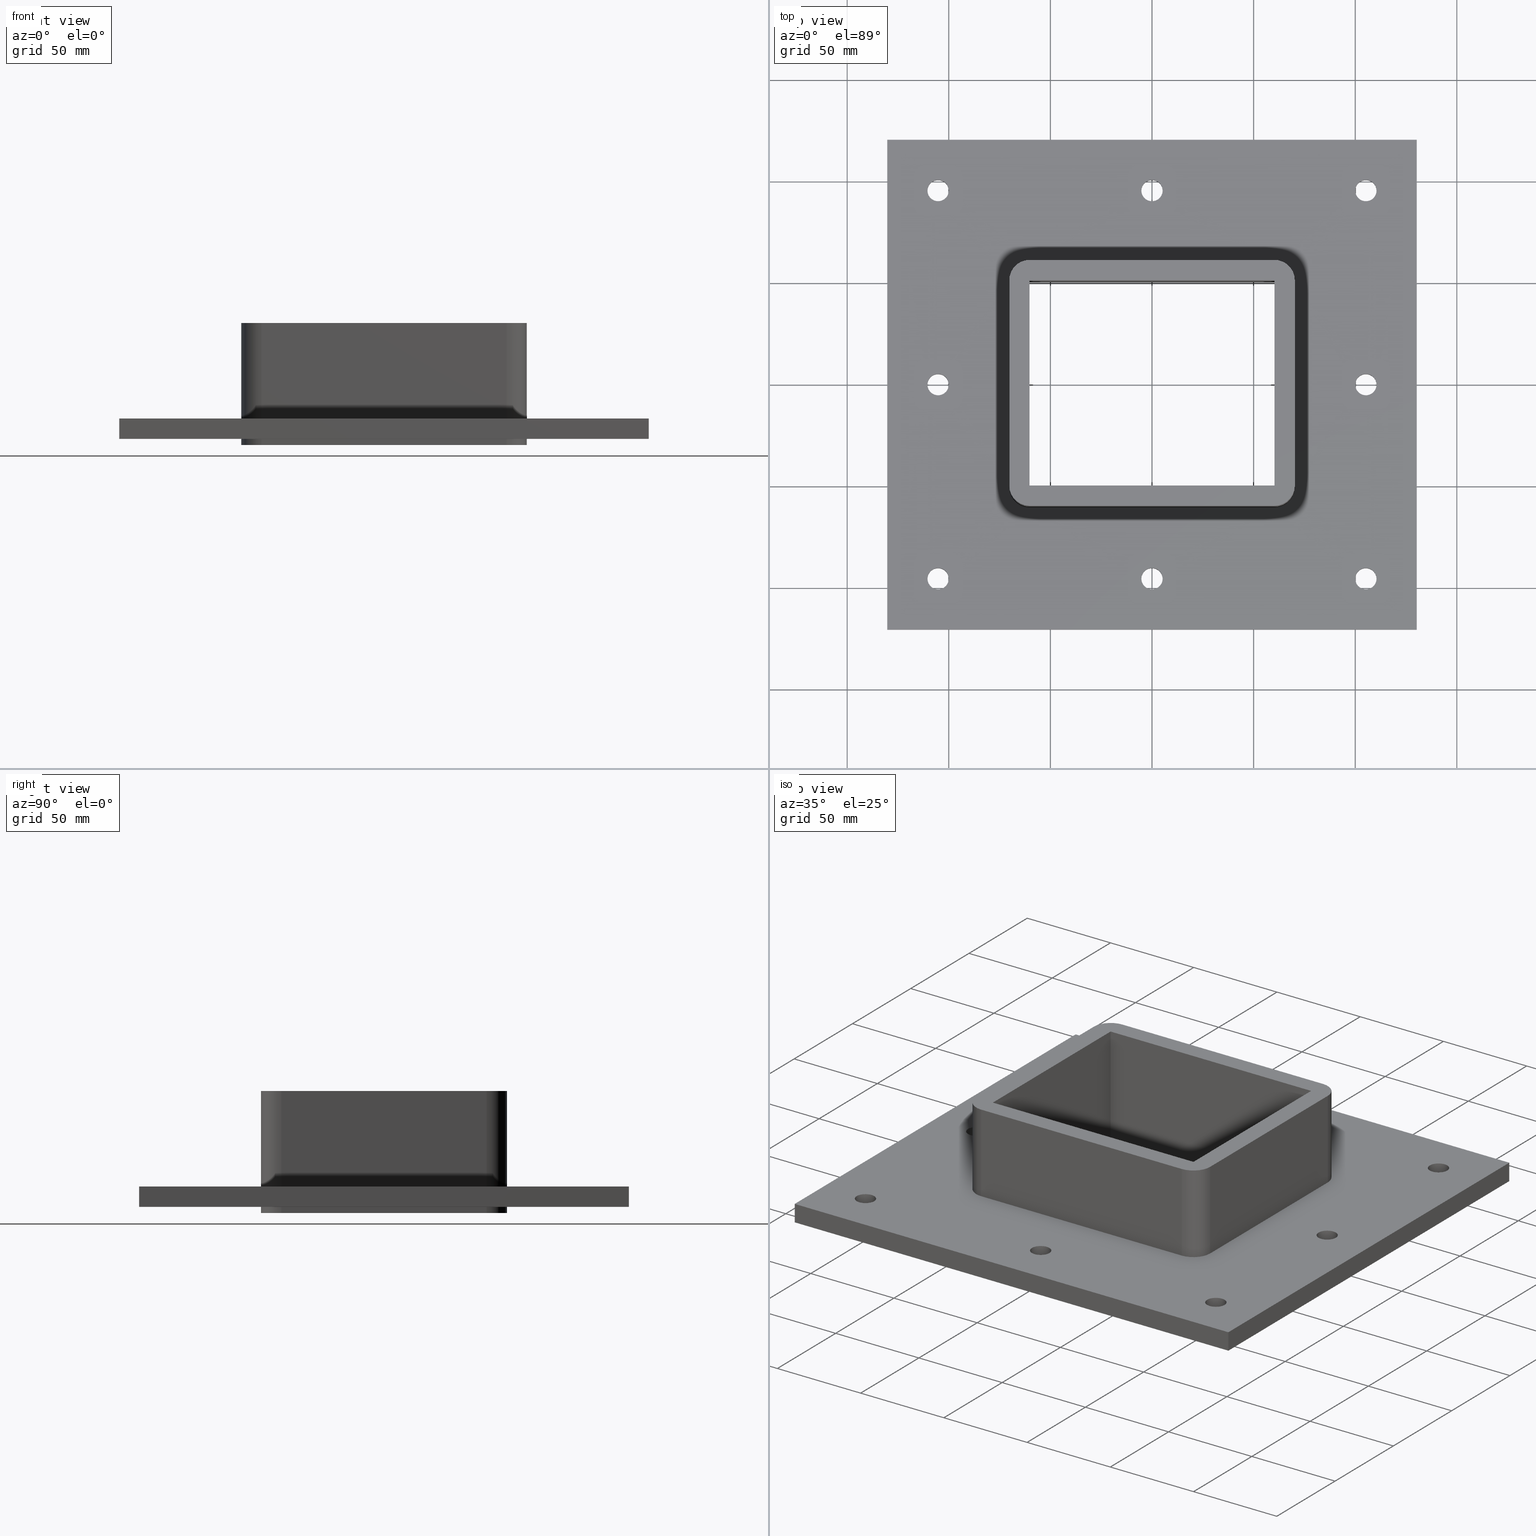
[diagram: canonical four-view strip — front | top / right | iso, engineering-drawing reading convention]
A machine part, canonical four-view strip (front | top / right | iso — engineering-drawing reading convention). The complete STEP part file that produces these views, byte-faithful:
ISO-10303-21;
HEADER;
/****************************************************************
 * Generated by software with PDElib inside                    *
 * PDElib Version v51a, created Wed 11/30/2011                  *
 * ITI Transcendata (http://www.transcendata.com/)              *
 ****************************************************************/
FILE_DESCRIPTION((''),'2;1');
FILE_NAME('C:\\Users\\se-milkar\\Desktop\\SFHM GENERATOR\\File dump\\SFHM2X1.stp','2017-01-17T17:21:05',(''),(''),'Autodesk Inventor 2013','Autodesk Inventor 2013','');
FILE_SCHEMA(('AUTOMOTIVE_DESIGN { 1 0 10303 214 1 1 1 1 }'));
ENDSEC;
DATA;
#5=APPLICATION_CONTEXT('automotive design');
#6=APPLICATION_PROTOCOL_DEFINITION('International Standard','automotive_design',2001,#5);
#7=PRODUCT_CONTEXT('',#5,'mechanical');
#8=PRODUCT('RTD-FRAME GENERATOR SF-LABB','RTD-FRAME GENERATOR SF-LABB',$,(#7));
#9=PRODUCT_RELATED_PRODUCT_CATEGORY('part',$,(#8));
#10=PRODUCT_DEFINITION_FORMATION('',$,#8);
#11=PRODUCT_DEFINITION_CONTEXT('part definition',#5,'design');
#12=PRODUCT_DEFINITION('',$,#10,#11);
#18=(NAMED_UNIT(*)PLANE_ANGLE_UNIT()SI_UNIT($,.RADIAN.));
#19=DIMENSIONAL_EXPONENTS(0.0,0.0,0.0,0.0,0.0,0.0,0.0);
#20=PLANE_ANGLE_MEASURE_WITH_UNIT(PLANE_ANGLE_MEASURE(0.0174532925),#18);
#24=(CONVERSION_BASED_UNIT('DEGREE',#20)NAMED_UNIT(#19)PLANE_ANGLE_UNIT());
#28=(NAMED_UNIT(*)SI_UNIT($,.STERADIAN.)SOLID_ANGLE_UNIT());
#32=(LENGTH_UNIT()NAMED_UNIT(*)SI_UNIT(.MILLI.,.METRE.));
#34=UNCERTAINTY_MEASURE_WITH_UNIT(LENGTH_MEASURE(0.01),#32,'DISTANCE_ACCURACY_VALUE','');
#36=(GEOMETRIC_REPRESENTATION_CONTEXT(3)GLOBAL_UNCERTAINTY_ASSIGNED_CONTEXT((#34))GLOBAL_UNIT_ASSIGNED_CONTEXT((#24,#28,#32))REPRESENTATION_CONTEXT('None','None'));
#37=AXIS2_PLACEMENT_3D('',#38,#39,#40);
#38=CARTESIAN_POINT('',(0.0,0.0,0.0));
#39=DIRECTION('',(0.0,0.0,1.0));
#40=DIRECTION('',(1.0,0.0,0.0));
#41=SHAPE_REPRESENTATION('',(#37),#36);
#42=PRODUCT_DEFINITION_SHAPE('','',#12);
#43=SHAPE_DEFINITION_REPRESENTATION(#42,#41);
#49=(NAMED_UNIT(*)PLANE_ANGLE_UNIT()SI_UNIT($,.RADIAN.));
#50=DIMENSIONAL_EXPONENTS(0.0,0.0,0.0,0.0,0.0,0.0,0.0);
#51=PLANE_ANGLE_MEASURE_WITH_UNIT(PLANE_ANGLE_MEASURE(0.0174532925),#49);
#55=(CONVERSION_BASED_UNIT('DEGREE',#51)NAMED_UNIT(#50)PLANE_ANGLE_UNIT());
#59=(NAMED_UNIT(*)SI_UNIT($,.STERADIAN.)SOLID_ANGLE_UNIT());
#63=(LENGTH_UNIT()NAMED_UNIT(*)SI_UNIT(.MILLI.,.METRE.));
#65=UNCERTAINTY_MEASURE_WITH_UNIT(LENGTH_MEASURE(0.000001),#63,'DISTANCE_ACCURACY_VALUE','');
#67=(GEOMETRIC_REPRESENTATION_CONTEXT(3)GLOBAL_UNCERTAINTY_ASSIGNED_CONTEXT((#65))GLOBAL_UNIT_ASSIGNED_CONTEXT((#55,#59,#63))REPRESENTATION_CONTEXT('','3D'));
#68=CARTESIAN_POINT('',(1.776357E-014,-95.500000000000028,-376.9183935283109));
#69=DIRECTION('',(0.0,0.0,1.0));
#70=DIRECTION('',(1.0,0.0,0.0));
#71=AXIS2_PLACEMENT_3D('',#68,#69,#70);
#72=CYLINDRICAL_SURFACE('',#71,5.25);
#73=CARTESIAN_POINT('',(-5.249999999999986,-95.500000000000028,-27.000000000000028));
#74=VERTEX_POINT('',#73);
#75=CARTESIAN_POINT('',(1.776357E-014,-95.500000000000028,-27.000000000000028));
#76=DIRECTION('',(0.0,0.0,1.0));
#77=DIRECTION('',(1.0,0.0,0.0));
#78=AXIS2_PLACEMENT_3D('',#75,#76,#77);
#79=CIRCLE('',#78,5.25);
#80=EDGE_CURVE('',#74,#74,#79,.T.);
#81=ORIENTED_EDGE('',*,*,#80,.F.);
#82=EDGE_LOOP('',(#81));
#83=FACE_OUTER_BOUND('',#82,.T.);
#84=CARTESIAN_POINT('',(5.250000000000021,-95.500000000000028,-17.0));
#85=VERTEX_POINT('',#84);
#86=CARTESIAN_POINT('',(1.776357E-014,-95.500000000000028,-17.000000000000028));
#87=DIRECTION('',(0.0,0.0,-1.0));
#88=DIRECTION('',(1.0,0.0,0.0));
#89=AXIS2_PLACEMENT_3D('',#86,#87,#88);
#90=CIRCLE('',#89,5.25);
#91=EDGE_CURVE('',#85,#85,#90,.T.);
#92=ORIENTED_EDGE('',*,*,#91,.F.);
#93=EDGE_LOOP('',(#92));
#94=FACE_BOUND('',#93,.T.);
#95=ADVANCED_FACE('',(#83,#94),#72,.F.);
#96=CARTESIAN_POINT('',(-1.776357E-014,95.499999999999986,-376.9183935283109));
#97=DIRECTION('',(0.0,0.0,1.0));
#98=DIRECTION('',(1.0,0.0,0.0));
#99=AXIS2_PLACEMENT_3D('',#96,#97,#98);
#100=CYLINDRICAL_SURFACE('',#99,5.25);
#101=CARTESIAN_POINT('',(-5.250000000000021,95.499999999999986,-27.000000000000028));
#102=VERTEX_POINT('',#101);
#103=CARTESIAN_POINT('',(-1.776357E-014,95.499999999999986,-27.000000000000028));
#104=DIRECTION('',(0.0,0.0,1.0));
#105=DIRECTION('',(1.0,0.0,0.0));
#106=AXIS2_PLACEMENT_3D('',#103,#104,#105);
#107=CIRCLE('',#106,5.25);
#108=EDGE_CURVE('',#102,#102,#107,.T.);
#109=ORIENTED_EDGE('',*,*,#108,.F.);
#110=EDGE_LOOP('',(#109));
#111=FACE_OUTER_BOUND('',#110,.T.);
#112=CARTESIAN_POINT('',(5.249999999999986,95.499999999999986,-17.0));
#113=VERTEX_POINT('',#112);
#114=CARTESIAN_POINT('',(-1.776357E-014,95.499999999999986,-17.000000000000028));
#115=DIRECTION('',(0.0,0.0,-1.0));
#116=DIRECTION('',(1.0,0.0,0.0));
#117=AXIS2_PLACEMENT_3D('',#114,#115,#116);
#118=CIRCLE('',#117,5.25);
#119=EDGE_CURVE('',#113,#113,#118,.T.);
#120=ORIENTED_EDGE('',*,*,#119,.F.);
#121=EDGE_LOOP('',(#120));
#122=FACE_BOUND('',#121,.T.);
#123=ADVANCED_FACE('',(#111,#122),#100,.F.);
#124=CARTESIAN_POINT('',(105.25,0.0,-376.9183935283109));
#125=DIRECTION('',(0.0,0.0,1.0));
#126=DIRECTION('',(1.0,0.0,0.0));
#127=AXIS2_PLACEMENT_3D('',#124,#125,#126);
#128=CYLINDRICAL_SURFACE('',#127,5.25);
#129=CARTESIAN_POINT('',(100.0,0.0,-27.000000000000028));
#130=VERTEX_POINT('',#129);
#131=CARTESIAN_POINT('',(105.25,0.0,-27.000000000000028));
#132=DIRECTION('',(0.0,0.0,1.0));
#133=DIRECTION('',(1.0,0.0,0.0));
#134=AXIS2_PLACEMENT_3D('',#131,#132,#133);
#135=CIRCLE('',#134,5.25);
#136=EDGE_CURVE('',#130,#130,#135,.T.);
#137=ORIENTED_EDGE('',*,*,#136,.F.);
#138=EDGE_LOOP('',(#137));
#139=FACE_OUTER_BOUND('',#138,.T.);
#140=CARTESIAN_POINT('',(110.5,0.0,-17.0));
#141=VERTEX_POINT('',#140);
#142=CARTESIAN_POINT('',(105.25,0.0,-17.000000000000028));
#143=DIRECTION('',(0.0,0.0,-1.0));
#144=DIRECTION('',(1.0,0.0,0.0));
#145=AXIS2_PLACEMENT_3D('',#142,#143,#144);
#146=CIRCLE('',#145,5.25);
#147=EDGE_CURVE('',#141,#141,#146,.T.);
#148=ORIENTED_EDGE('',*,*,#147,.F.);
#149=EDGE_LOOP('',(#148));
#150=FACE_BOUND('',#149,.T.);
#151=ADVANCED_FACE('',(#139,#150),#128,.F.);
#152=CARTESIAN_POINT('',(-105.25,-3.552714E-014,-376.9183935283109));
#153=DIRECTION('',(0.0,0.0,1.0));
#154=DIRECTION('',(1.0,0.0,0.0));
#155=AXIS2_PLACEMENT_3D('',#152,#153,#154);
#156=CYLINDRICAL_SURFACE('',#155,5.25);
#157=CARTESIAN_POINT('',(-110.5,-3.552714E-014,-27.000000000000028));
#158=VERTEX_POINT('',#157);
#159=CARTESIAN_POINT('',(-105.25,-3.552714E-014,-27.000000000000028));
#160=DIRECTION('',(0.0,0.0,1.0));
#161=DIRECTION('',(1.0,0.0,0.0));
#162=AXIS2_PLACEMENT_3D('',#159,#160,#161);
#163=CIRCLE('',#162,5.25);
#164=EDGE_CURVE('',#158,#158,#163,.T.);
#165=ORIENTED_EDGE('',*,*,#164,.F.);
#166=EDGE_LOOP('',(#165));
#167=FACE_OUTER_BOUND('',#166,.T.);
#168=CARTESIAN_POINT('',(-100.0,-3.552714E-014,-17.0));
#169=VERTEX_POINT('',#168);
#170=CARTESIAN_POINT('',(-105.25,-3.552714E-014,-17.000000000000028));
#171=DIRECTION('',(0.0,0.0,-1.0));
#172=DIRECTION('',(1.0,0.0,0.0));
#173=AXIS2_PLACEMENT_3D('',#170,#171,#172);
#174=CIRCLE('',#173,5.25);
#175=EDGE_CURVE('',#169,#169,#174,.T.);
#176=ORIENTED_EDGE('',*,*,#175,.F.);
#177=EDGE_LOOP('',(#176));
#178=FACE_BOUND('',#177,.T.);
#179=ADVANCED_FACE('',(#167,#178),#156,.F.);
#180=CARTESIAN_POINT('',(-105.25000000000003,95.499999999999972,-376.9183935283109));
#181=DIRECTION('',(0.0,0.0,1.0));
#182=DIRECTION('',(1.0,0.0,0.0));
#183=AXIS2_PLACEMENT_3D('',#180,#181,#182);
#184=CYLINDRICAL_SURFACE('',#183,5.25);
#185=CARTESIAN_POINT('',(-110.50000000000003,95.499999999999972,-27.000000000000028));
#186=VERTEX_POINT('',#185);
#187=CARTESIAN_POINT('',(-105.25000000000003,95.499999999999972,-27.000000000000028));
#188=DIRECTION('',(0.0,0.0,1.0));
#189=DIRECTION('',(1.0,0.0,0.0));
#190=AXIS2_PLACEMENT_3D('',#187,#188,#189);
#191=CIRCLE('',#190,5.25);
#192=EDGE_CURVE('',#186,#186,#191,.T.);
#193=ORIENTED_EDGE('',*,*,#192,.F.);
#194=EDGE_LOOP('',(#193));
#195=FACE_OUTER_BOUND('',#194,.T.);
#196=CARTESIAN_POINT('',(-100.00000000000001,95.499999999999972,-17.0));
#197=VERTEX_POINT('',#196);
#198=CARTESIAN_POINT('',(-105.25000000000003,95.499999999999972,-17.000000000000028));
#199=DIRECTION('',(0.0,0.0,-1.0));
#200=DIRECTION('',(1.0,0.0,0.0));
#201=AXIS2_PLACEMENT_3D('',#198,#199,#200);
#202=CIRCLE('',#201,5.25);
#203=EDGE_CURVE('',#197,#197,#202,.T.);
#204=ORIENTED_EDGE('',*,*,#203,.F.);
#205=EDGE_LOOP('',(#204));
#206=FACE_BOUND('',#205,.T.);
#207=ADVANCED_FACE('',(#195,#206),#184,.F.);
#208=CARTESIAN_POINT('',(105.24999999999999,95.5,-376.9183935283109));
#209=DIRECTION('',(0.0,0.0,1.0));
#210=DIRECTION('',(1.0,0.0,0.0));
#211=AXIS2_PLACEMENT_3D('',#208,#209,#210);
#212=CYLINDRICAL_SURFACE('',#211,5.25);
#213=CARTESIAN_POINT('',(99.999999999999986,95.5,-27.000000000000028));
#214=VERTEX_POINT('',#213);
#215=CARTESIAN_POINT('',(105.24999999999999,95.5,-27.000000000000028));
#216=DIRECTION('',(0.0,0.0,1.0));
#217=DIRECTION('',(1.0,0.0,0.0));
#218=AXIS2_PLACEMENT_3D('',#215,#216,#217);
#219=CIRCLE('',#218,5.25);
#220=EDGE_CURVE('',#214,#214,#219,.T.);
#221=ORIENTED_EDGE('',*,*,#220,.F.);
#222=EDGE_LOOP('',(#221));
#223=FACE_OUTER_BOUND('',#222,.T.);
#224=CARTESIAN_POINT('',(110.49999999999999,95.5,-17.0));
#225=VERTEX_POINT('',#224);
#226=CARTESIAN_POINT('',(105.24999999999999,95.5,-17.000000000000028));
#227=DIRECTION('',(0.0,0.0,-1.0));
#228=DIRECTION('',(1.0,0.0,0.0));
#229=AXIS2_PLACEMENT_3D('',#226,#227,#228);
#230=CIRCLE('',#229,5.25);
#231=EDGE_CURVE('',#225,#225,#230,.T.);
#232=ORIENTED_EDGE('',*,*,#231,.F.);
#233=EDGE_LOOP('',(#232));
#234=FACE_BOUND('',#233,.T.);
#235=ADVANCED_FACE('',(#223,#234),#212,.F.);
#236=CARTESIAN_POINT('',(105.25000000000003,-95.5,-376.9183935283109));
#237=DIRECTION('',(0.0,0.0,1.0));
#238=DIRECTION('',(1.0,0.0,0.0));
#239=AXIS2_PLACEMENT_3D('',#236,#237,#238);
#240=CYLINDRICAL_SURFACE('',#239,5.25);
#241=CARTESIAN_POINT('',(100.00000000000001,-95.5,-27.000000000000028));
#242=VERTEX_POINT('',#241);
#243=CARTESIAN_POINT('',(105.25000000000003,-95.5,-27.000000000000028));
#244=DIRECTION('',(0.0,0.0,1.0));
#245=DIRECTION('',(1.0,0.0,0.0));
#246=AXIS2_PLACEMENT_3D('',#243,#244,#245);
#247=CIRCLE('',#246,5.25);
#248=EDGE_CURVE('',#242,#242,#247,.T.);
#249=ORIENTED_EDGE('',*,*,#248,.F.);
#250=EDGE_LOOP('',(#249));
#251=FACE_OUTER_BOUND('',#250,.T.);
#252=CARTESIAN_POINT('',(110.50000000000003,-95.5,-17.0));
#253=VERTEX_POINT('',#252);
#254=CARTESIAN_POINT('',(105.25000000000003,-95.5,-17.000000000000028));
#255=DIRECTION('',(0.0,0.0,-1.0));
#256=DIRECTION('',(1.0,0.0,0.0));
#257=AXIS2_PLACEMENT_3D('',#254,#255,#256);
#258=CIRCLE('',#257,5.25);
#259=EDGE_CURVE('',#253,#253,#258,.T.);
#260=ORIENTED_EDGE('',*,*,#259,.F.);
#261=EDGE_LOOP('',(#260));
#262=FACE_BOUND('',#261,.T.);
#263=ADVANCED_FACE('',(#251,#262),#240,.F.);
#264=CARTESIAN_POINT('',(-105.24999999999999,-95.500000000000043,-376.9183935283109));
#265=DIRECTION('',(0.0,0.0,1.0));
#266=DIRECTION('',(1.0,0.0,0.0));
#267=AXIS2_PLACEMENT_3D('',#264,#265,#266);
#268=CYLINDRICAL_SURFACE('',#267,5.25);
#269=CARTESIAN_POINT('',(-110.49999999999999,-95.500000000000043,-27.000000000000028));
#270=VERTEX_POINT('',#269);
#271=CARTESIAN_POINT('',(-105.24999999999999,-95.500000000000043,-27.000000000000028));
#272=DIRECTION('',(0.0,0.0,1.0));
#273=DIRECTION('',(1.0,0.0,0.0));
#274=AXIS2_PLACEMENT_3D('',#271,#272,#273);
#275=CIRCLE('',#274,5.25);
#276=EDGE_CURVE('',#270,#270,#275,.T.);
#277=ORIENTED_EDGE('',*,*,#276,.F.);
#278=EDGE_LOOP('',(#277));
#279=FACE_OUTER_BOUND('',#278,.T.);
#280=CARTESIAN_POINT('',(-99.999999999999986,-95.500000000000043,-17.0));
#281=VERTEX_POINT('',#280);
#282=CARTESIAN_POINT('',(-105.24999999999999,-95.500000000000043,-17.000000000000028));
#283=DIRECTION('',(0.0,0.0,-1.0));
#284=DIRECTION('',(1.0,0.0,0.0));
#285=AXIS2_PLACEMENT_3D('',#282,#283,#284);
#286=CIRCLE('',#285,5.25);
#287=EDGE_CURVE('',#281,#281,#286,.T.);
#288=ORIENTED_EDGE('',*,*,#287,.F.);
#289=EDGE_LOOP('',(#288));
#290=FACE_BOUND('',#289,.T.);
#291=ADVANCED_FACE('',(#279,#290),#268,.F.);
#292=CARTESIAN_POINT('',(-130.25000000000003,120.49999999999997,-27.0));
#293=DIRECTION('',(-1.0,0.0,0.0));
#294=DIRECTION('',(0.0,-1.0,0.0));
#295=AXIS2_PLACEMENT_3D('',#292,#293,#294);
#296=PLANE('',#295);
#297=CARTESIAN_POINT('',(-130.25,-120.50000000000004,-27.0));
#298=VERTEX_POINT('',#297);
#299=CARTESIAN_POINT('',(-130.25000000000003,120.49999999999997,-27.0));
#300=VERTEX_POINT('',#299);
#301=CARTESIAN_POINT('',(-130.25,-120.50000000000004,-27.0));
#302=DIRECTION('',(0.0,1.0,0.0));
#303=VECTOR('',#302,241.0);
#304=LINE('',#301,#303);
#305=EDGE_CURVE('',#298,#300,#304,.T.);
#306=ORIENTED_EDGE('',*,*,#305,.F.);
#307=CARTESIAN_POINT('',(-130.25,-120.50000000000004,-17.0));
#308=VERTEX_POINT('',#307);
#309=CARTESIAN_POINT('',(-130.25,-120.50000000000004,-27.0));
#310=DIRECTION('',(0.0,0.0,1.0));
#311=VECTOR('',#310,10.0);
#312=LINE('',#309,#311);
#313=EDGE_CURVE('',#298,#308,#312,.T.);
#314=ORIENTED_EDGE('',*,*,#313,.T.);
#315=CARTESIAN_POINT('',(-130.25000000000003,120.49999999999997,-17.0));
#316=VERTEX_POINT('',#315);
#317=CARTESIAN_POINT('',(-130.25000000000003,120.49999999999996,-17.0));
#318=DIRECTION('',(0.0,-1.0,0.0));
#319=VECTOR('',#318,241.0);
#320=LINE('',#317,#319);
#321=EDGE_CURVE('',#316,#308,#320,.T.);
#322=ORIENTED_EDGE('',*,*,#321,.F.);
#323=CARTESIAN_POINT('',(-130.25000000000003,120.49999999999997,-27.0));
#324=DIRECTION('',(0.0,0.0,1.0));
#325=VECTOR('',#324,10.0);
#326=LINE('',#323,#325);
#327=EDGE_CURVE('',#300,#316,#326,.T.);
#328=ORIENTED_EDGE('',*,*,#327,.F.);
#329=EDGE_LOOP('',(#306,#314,#322,#328));
#330=FACE_OUTER_BOUND('',#329,.T.);
#331=ADVANCED_FACE('',(#330),#296,.T.);
#332=CARTESIAN_POINT('',(130.25,120.5,-27.0));
#333=DIRECTION('',(0.0,1.0,0.0));
#334=DIRECTION('',(-1.0,0.0,0.0));
#335=AXIS2_PLACEMENT_3D('',#332,#333,#334);
#336=PLANE('',#335);
#337=CARTESIAN_POINT('',(130.25,120.5,-27.0));
#338=VERTEX_POINT('',#337);
#339=CARTESIAN_POINT('',(-130.25000000000003,120.49999999999997,-27.0));
#340=DIRECTION('',(1.0,0.0,0.0));
#341=VECTOR('',#340,260.5);
#342=LINE('',#339,#341);
#343=EDGE_CURVE('',#300,#338,#342,.T.);
#344=ORIENTED_EDGE('',*,*,#343,.F.);
#345=ORIENTED_EDGE('',*,*,#327,.T.);
#346=CARTESIAN_POINT('',(130.25,120.5,-17.0));
#347=VERTEX_POINT('',#346);
#348=CARTESIAN_POINT('',(130.24999999999997,120.5,-17.0));
#349=DIRECTION('',(-1.0,0.0,0.0));
#350=VECTOR('',#349,260.5);
#351=LINE('',#348,#350);
#352=EDGE_CURVE('',#347,#316,#351,.T.);
#353=ORIENTED_EDGE('',*,*,#352,.F.);
#354=CARTESIAN_POINT('',(130.25,120.5,-27.0));
#355=DIRECTION('',(0.0,0.0,1.0));
#356=VECTOR('',#355,10.0);
#357=LINE('',#354,#356);
#358=EDGE_CURVE('',#338,#347,#357,.T.);
#359=ORIENTED_EDGE('',*,*,#358,.F.);
#360=EDGE_LOOP('',(#344,#345,#353,#359));
#361=FACE_OUTER_BOUND('',#360,.T.);
#362=ADVANCED_FACE('',(#361),#336,.T.);
#363=CARTESIAN_POINT('',(130.25000000000003,-120.5,-27.0));
#364=DIRECTION('',(1.0,0.0,0.0));
#365=DIRECTION('',(0.0,1.0,0.0));
#366=AXIS2_PLACEMENT_3D('',#363,#364,#365);
#367=PLANE('',#366);
#368=CARTESIAN_POINT('',(130.25000000000003,-120.5,-27.0));
#369=VERTEX_POINT('',#368);
#370=CARTESIAN_POINT('',(130.25,120.5,-27.0));
#371=DIRECTION('',(0.0,-1.0,0.0));
#372=VECTOR('',#371,241.0);
#373=LINE('',#370,#372);
#374=EDGE_CURVE('',#338,#369,#373,.T.);
#375=ORIENTED_EDGE('',*,*,#374,.F.);
#376=ORIENTED_EDGE('',*,*,#358,.T.);
#377=CARTESIAN_POINT('',(130.25000000000003,-120.5,-17.0));
#378=VERTEX_POINT('',#377);
#379=CARTESIAN_POINT('',(130.25000000000003,-120.5,-17.0));
#380=DIRECTION('',(0.0,1.0,0.0));
#381=VECTOR('',#380,241.0);
#382=LINE('',#379,#381);
#383=EDGE_CURVE('',#378,#347,#382,.T.);
#384=ORIENTED_EDGE('',*,*,#383,.F.);
#385=CARTESIAN_POINT('',(130.25000000000003,-120.5,-27.0));
#386=DIRECTION('',(0.0,0.0,1.0));
#387=VECTOR('',#386,10.0);
#388=LINE('',#385,#387);
#389=EDGE_CURVE('',#369,#378,#388,.T.);
#390=ORIENTED_EDGE('',*,*,#389,.F.);
#391=EDGE_LOOP('',(#375,#376,#384,#390));
#392=FACE_OUTER_BOUND('',#391,.T.);
#393=ADVANCED_FACE('',(#392),#367,.T.);
#394=CARTESIAN_POINT('',(-130.25,-120.50000000000004,-27.0));
#395=DIRECTION('',(0.0,-1.0,0.0));
#396=DIRECTION('',(1.0,0.0,0.0));
#397=AXIS2_PLACEMENT_3D('',#394,#395,#396);
#398=PLANE('',#397);
#399=CARTESIAN_POINT('',(130.25000000000003,-120.5,-27.0));
#400=DIRECTION('',(-1.0,0.0,0.0));
#401=VECTOR('',#400,260.5);
#402=LINE('',#399,#401);
#403=EDGE_CURVE('',#369,#298,#402,.T.);
#404=ORIENTED_EDGE('',*,*,#403,.F.);
#405=ORIENTED_EDGE('',*,*,#389,.T.);
#406=CARTESIAN_POINT('',(-130.24999999999997,-120.50000000000003,-17.0));
#407=DIRECTION('',(1.0,0.0,0.0));
#408=VECTOR('',#407,260.5);
#409=LINE('',#406,#408);
#410=EDGE_CURVE('',#308,#378,#409,.T.);
#411=ORIENTED_EDGE('',*,*,#410,.F.);
#412=ORIENTED_EDGE('',*,*,#313,.F.);
#413=EDGE_LOOP('',(#404,#405,#411,#412));
#414=FACE_OUTER_BOUND('',#413,.T.);
#415=ADVANCED_FACE('',(#414),#398,.T.);
#416=CARTESIAN_POINT('',(0.0,-2.125252E-014,-17.0));
#417=DIRECTION('',(0.0,0.0,1.0));
#418=DIRECTION('',(1.0,0.0,0.0));
#419=AXIS2_PLACEMENT_3D('',#416,#417,#418);
#420=PLANE('',#419);
#421=ORIENTED_EDGE('',*,*,#410,.T.);
#422=ORIENTED_EDGE('',*,*,#383,.T.);
#423=ORIENTED_EDGE('',*,*,#352,.T.);
#424=ORIENTED_EDGE('',*,*,#321,.T.);
#425=EDGE_LOOP('',(#421,#422,#423,#424));
#426=FACE_OUTER_BOUND('',#425,.T.);
#427=ORIENTED_EDGE('',*,*,#91,.T.);
#428=EDGE_LOOP('',(#427));
#429=FACE_BOUND('',#428,.T.);
#430=ORIENTED_EDGE('',*,*,#119,.T.);
#431=EDGE_LOOP('',(#430));
#432=FACE_BOUND('',#431,.T.);
#433=ORIENTED_EDGE('',*,*,#147,.T.);
#434=EDGE_LOOP('',(#433));
#435=FACE_BOUND('',#434,.T.);
#436=ORIENTED_EDGE('',*,*,#175,.T.);
#437=EDGE_LOOP('',(#436));
#438=FACE_BOUND('',#437,.T.);
#439=ORIENTED_EDGE('',*,*,#203,.T.);
#440=EDGE_LOOP('',(#439));
#441=FACE_BOUND('',#440,.T.);
#442=ORIENTED_EDGE('',*,*,#231,.T.);
#443=EDGE_LOOP('',(#442));
#444=FACE_BOUND('',#443,.T.);
#445=ORIENTED_EDGE('',*,*,#259,.T.);
#446=EDGE_LOOP('',(#445));
#447=FACE_BOUND('',#446,.T.);
#448=ORIENTED_EDGE('',*,*,#287,.T.);
#449=EDGE_LOOP('',(#448));
#450=FACE_BOUND('',#449,.T.);
#451=CARTESIAN_POINT('',(70.25,50.500000000000007,-17.0));
#452=VERTEX_POINT('',#451);
#453=CARTESIAN_POINT('',(60.25,60.500000000000043,-17.0));
#454=VERTEX_POINT('',#453);
#455=CARTESIAN_POINT('',(60.249999999999979,50.500000000000043,-17.0));
#456=DIRECTION('',(0.0,0.0,1.0));
#457=DIRECTION('',(0.707106781186547,0.707106781186547,0.0));
#458=AXIS2_PLACEMENT_3D('',#455,#456,#457);
#459=CIRCLE('',#458,9.999999999999998);
#460=EDGE_CURVE('',#452,#454,#459,.T.);
#461=ORIENTED_EDGE('',*,*,#460,.F.);
#462=CARTESIAN_POINT('',(70.250000000000028,-50.500000000000007,-17.0));
#463=VERTEX_POINT('',#462);
#464=CARTESIAN_POINT('',(70.249999999999986,-50.500000000000007,-17.0));
#465=DIRECTION('',(0.0,1.0,0.0));
#466=VECTOR('',#465,101.00000000000003);
#467=LINE('',#464,#466);
#468=EDGE_CURVE('',#463,#452,#467,.T.);
#469=ORIENTED_EDGE('',*,*,#468,.F.);
#470=CARTESIAN_POINT('',(60.250000000000021,-60.499999999999972,-17.0));
#471=VERTEX_POINT('',#470);
#472=CARTESIAN_POINT('',(60.249999999999993,-50.499999999999972,-17.0));
#473=DIRECTION('',(0.0,0.0,1.0));
#474=DIRECTION('',(0.707106781186547,-0.707106781186547,0.0));
#475=AXIS2_PLACEMENT_3D('',#472,#473,#474);
#476=CIRCLE('',#475,9.999999999999998);
#477=EDGE_CURVE('',#471,#463,#476,.T.);
#478=ORIENTED_EDGE('',*,*,#477,.F.);
#479=CARTESIAN_POINT('',(-60.249999999999986,-60.500000000000043,-17.0));
#480=VERTEX_POINT('',#479);
#481=CARTESIAN_POINT('',(-60.249999999999986,-60.499999999999972,-17.0));
#482=DIRECTION('',(1.0,0.0,0.0));
#483=VECTOR('',#482,120.5);
#484=LINE('',#481,#483);
#485=EDGE_CURVE('',#480,#471,#484,.T.);
#486=ORIENTED_EDGE('',*,*,#485,.F.);
#487=CARTESIAN_POINT('',(-70.249999999999986,-50.500000000000007,-17.0));
#488=VERTEX_POINT('',#487);
#489=CARTESIAN_POINT('',(-60.249999999999993,-50.499999999999972,-17.0));
#490=DIRECTION('',(0.0,0.0,1.0));
#491=DIRECTION('',(-0.707106781186547,-0.707106781186547,0.0));
#492=AXIS2_PLACEMENT_3D('',#489,#490,#491);
#493=CIRCLE('',#492,9.999999999999998);
#494=EDGE_CURVE('',#488,#480,#493,.T.);
#495=ORIENTED_EDGE('',*,*,#494,.F.);
#496=CARTESIAN_POINT('',(-70.25,50.500000000000007,-17.0));
#497=VERTEX_POINT('',#496);
#498=CARTESIAN_POINT('',(-70.250000000000028,50.500000000000007,-17.0));
#499=DIRECTION('',(0.0,-1.0,0.0));
#500=VECTOR('',#499,101.00000000000003);
#501=LINE('',#498,#500);
#502=EDGE_CURVE('',#497,#488,#501,.T.);
#503=ORIENTED_EDGE('',*,*,#502,.F.);
#504=CARTESIAN_POINT('',(-60.250000000000021,60.499999999999972,-17.0));
#505=VERTEX_POINT('',#504);
#506=CARTESIAN_POINT('',(-60.250000000000028,50.500000000000043,-17.0));
#507=DIRECTION('',(0.0,0.0,1.0));
#508=DIRECTION('',(-0.707106781186547,0.707106781186547,0.0));
#509=AXIS2_PLACEMENT_3D('',#506,#507,#508);
#510=CIRCLE('',#509,9.999999999999998);
#511=EDGE_CURVE('',#505,#497,#510,.T.);
#512=ORIENTED_EDGE('',*,*,#511,.F.);
#513=CARTESIAN_POINT('',(60.25,60.500000000000043,-17.0));
#514=DIRECTION('',(-1.0,0.0,0.0));
#515=VECTOR('',#514,120.50000000000003);
#516=LINE('',#513,#515);
#517=EDGE_CURVE('',#454,#505,#516,.T.);
#518=ORIENTED_EDGE('',*,*,#517,.F.);
#519=EDGE_LOOP('',(#461,#469,#478,#486,#495,#503,#512,#518));
#520=FACE_BOUND('',#519,.T.);
#521=ADVANCED_FACE('',(#426,#429,#432,#435,#438,#441,#444,#447,#450,#520),#420,.T.);
#522=CARTESIAN_POINT('',(0.0,-2.125252E-014,-27.0));
#523=DIRECTION('',(0.0,0.0,1.0));
#524=DIRECTION('',(1.0,0.0,0.0));
#525=AXIS2_PLACEMENT_3D('',#522,#523,#524);
#526=PLANE('',#525);
#527=ORIENTED_EDGE('',*,*,#403,.T.);
#528=ORIENTED_EDGE('',*,*,#305,.T.);
#529=ORIENTED_EDGE('',*,*,#343,.T.);
#530=ORIENTED_EDGE('',*,*,#374,.T.);
#531=EDGE_LOOP('',(#527,#528,#529,#530));
#532=FACE_OUTER_BOUND('',#531,.T.);
#533=ORIENTED_EDGE('',*,*,#80,.T.);
#534=EDGE_LOOP('',(#533));
#535=FACE_BOUND('',#534,.T.);
#536=ORIENTED_EDGE('',*,*,#108,.T.);
#537=EDGE_LOOP('',(#536));
#538=FACE_BOUND('',#537,.T.);
#539=ORIENTED_EDGE('',*,*,#136,.T.);
#540=EDGE_LOOP('',(#539));
#541=FACE_BOUND('',#540,.T.);
#542=ORIENTED_EDGE('',*,*,#164,.T.);
#543=EDGE_LOOP('',(#542));
#544=FACE_BOUND('',#543,.T.);
#545=ORIENTED_EDGE('',*,*,#192,.T.);
#546=EDGE_LOOP('',(#545));
#547=FACE_BOUND('',#546,.T.);
#548=ORIENTED_EDGE('',*,*,#220,.T.);
#549=EDGE_LOOP('',(#548));
#550=FACE_BOUND('',#549,.T.);
#551=ORIENTED_EDGE('',*,*,#248,.T.);
#552=EDGE_LOOP('',(#551));
#553=FACE_BOUND('',#552,.T.);
#554=ORIENTED_EDGE('',*,*,#276,.T.);
#555=EDGE_LOOP('',(#554));
#556=FACE_BOUND('',#555,.T.);
#557=CARTESIAN_POINT('',(60.25,60.500000000000043,-27.0));
#558=VERTEX_POINT('',#557);
#559=CARTESIAN_POINT('',(70.25,50.500000000000007,-27.0));
#560=VERTEX_POINT('',#559);
#561=CARTESIAN_POINT('',(60.249999999999979,50.500000000000043,-27.0));
#562=DIRECTION('',(0.0,0.0,-1.0));
#563=DIRECTION('',(0.707106781186547,0.707106781186547,0.0));
#564=AXIS2_PLACEMENT_3D('',#561,#562,#563);
#565=CIRCLE('',#564,9.999999999999998);
#566=EDGE_CURVE('',#558,#560,#565,.T.);
#567=ORIENTED_EDGE('',*,*,#566,.F.);
#568=CARTESIAN_POINT('',(-60.250000000000021,60.499999999999972,-27.0));
#569=VERTEX_POINT('',#568);
#570=CARTESIAN_POINT('',(-60.250000000000028,60.500000000000043,-27.0));
#571=DIRECTION('',(1.0,0.0,0.0));
#572=VECTOR('',#571,120.50000000000003);
#573=LINE('',#570,#572);
#574=EDGE_CURVE('',#569,#558,#573,.T.);
#575=ORIENTED_EDGE('',*,*,#574,.F.);
#576=CARTESIAN_POINT('',(-70.25,50.500000000000007,-27.0));
#577=VERTEX_POINT('',#576);
#578=CARTESIAN_POINT('',(-60.250000000000028,50.500000000000043,-27.0));
#579=DIRECTION('',(0.0,0.0,-1.0));
#580=DIRECTION('',(-0.707106781186547,0.707106781186547,0.0));
#581=AXIS2_PLACEMENT_3D('',#578,#579,#580);
#582=CIRCLE('',#581,9.999999999999998);
#583=EDGE_CURVE('',#577,#569,#582,.T.);
#584=ORIENTED_EDGE('',*,*,#583,.F.);
#585=CARTESIAN_POINT('',(-70.249999999999986,-50.500000000000007,-27.0));
#586=VERTEX_POINT('',#585);
#587=CARTESIAN_POINT('',(-70.25,-50.500000000000014,-27.0));
#588=DIRECTION('',(0.0,1.0,0.0));
#589=VECTOR('',#588,101.00000000000003);
#590=LINE('',#587,#589);
#591=EDGE_CURVE('',#586,#577,#590,.T.);
#592=ORIENTED_EDGE('',*,*,#591,.F.);
#593=CARTESIAN_POINT('',(-60.249999999999986,-60.500000000000043,-27.0));
#594=VERTEX_POINT('',#593);
#595=CARTESIAN_POINT('',(-60.249999999999993,-50.499999999999972,-27.0));
#596=DIRECTION('',(0.0,0.0,-1.0));
#597=DIRECTION('',(-0.707106781186547,-0.707106781186547,0.0));
#598=AXIS2_PLACEMENT_3D('',#595,#596,#597);
#599=CIRCLE('',#598,9.999999999999998);
#600=EDGE_CURVE('',#594,#586,#599,.T.);
#601=ORIENTED_EDGE('',*,*,#600,.F.);
#602=CARTESIAN_POINT('',(60.250000000000021,-60.499999999999972,-27.0));
#603=VERTEX_POINT('',#602);
#604=CARTESIAN_POINT('',(60.250000000000014,-60.499999999999972,-27.0));
#605=DIRECTION('',(-1.0,0.0,0.0));
#606=VECTOR('',#605,120.5);
#607=LINE('',#604,#606);
#608=EDGE_CURVE('',#603,#594,#607,.T.);
#609=ORIENTED_EDGE('',*,*,#608,.F.);
#610=CARTESIAN_POINT('',(70.250000000000028,-50.500000000000007,-27.0));
#611=VERTEX_POINT('',#610);
#612=CARTESIAN_POINT('',(60.249999999999993,-50.499999999999972,-27.0));
#613=DIRECTION('',(0.0,0.0,-1.0));
#614=DIRECTION('',(0.707106781186547,-0.707106781186547,0.0));
#615=AXIS2_PLACEMENT_3D('',#612,#613,#614);
#616=CIRCLE('',#615,9.999999999999998);
#617=EDGE_CURVE('',#611,#603,#616,.T.);
#618=ORIENTED_EDGE('',*,*,#617,.F.);
#619=CARTESIAN_POINT('',(70.249999999999972,50.500000000000014,-27.0));
#620=DIRECTION('',(0.0,-1.0,0.0));
#621=VECTOR('',#620,101.00000000000003);
#622=LINE('',#619,#621);
#623=EDGE_CURVE('',#560,#611,#622,.T.);
#624=ORIENTED_EDGE('',*,*,#623,.F.);
#625=EDGE_LOOP('',(#567,#575,#584,#592,#601,#609,#618,#624));
#626=FACE_BOUND('',#625,.T.);
#627=ADVANCED_FACE('',(#532,#535,#538,#541,#544,#547,#550,#553,#556,#626),#526,.F.);
#628=CARTESIAN_POINT('',(60.249999999999993,-50.499999999999972,0.0));
#629=DIRECTION('',(0.0,0.0,1.0));
#630=DIRECTION('',(0.707106781186547,-0.707106781186547,0.0));
#631=AXIS2_PLACEMENT_3D('',#628,#629,#630);
#632=CYLINDRICAL_SURFACE('',#631,10.0);
#633=ORIENTED_EDGE('',*,*,#617,.T.);
#634=CARTESIAN_POINT('',(60.249999999999993,-60.499999999999972,-30.0));
#635=VERTEX_POINT('',#634);
#636=CARTESIAN_POINT('',(60.249999999999993,-60.499999999999972,-27.0));
#637=DIRECTION('',(0.0,0.0,-1.0));
#638=VECTOR('',#637,3.0);
#639=LINE('',#636,#638);
#640=EDGE_CURVE('',#603,#635,#639,.T.);
#641=ORIENTED_EDGE('',*,*,#640,.T.);
#642=CARTESIAN_POINT('',(70.25,-50.499999999999972,-30.0));
#643=VERTEX_POINT('',#642);
#644=CARTESIAN_POINT('',(60.249999999999993,-50.499999999999972,-30.0));
#645=DIRECTION('',(0.0,0.0,1.0));
#646=DIRECTION('',(0.707106781186547,-0.707106781186547,0.0));
#647=AXIS2_PLACEMENT_3D('',#644,#645,#646);
#648=CIRCLE('',#647,9.999999999999998);
#649=EDGE_CURVE('',#635,#643,#648,.T.);
#650=ORIENTED_EDGE('',*,*,#649,.T.);
#651=CARTESIAN_POINT('',(70.25,-50.499999999999972,-30.0));
#652=DIRECTION('',(0.0,0.0,1.0));
#653=VECTOR('',#652,3.0);
#654=LINE('',#651,#653);
#655=EDGE_CURVE('',#643,#611,#654,.T.);
#656=ORIENTED_EDGE('',*,*,#655,.T.);
#657=EDGE_LOOP('',(#633,#641,#650,#656));
#658=FACE_OUTER_BOUND('',#657,.T.);
#659=ADVANCED_FACE('',(#658),#632,.T.);
#660=CARTESIAN_POINT('',(60.249999999999993,-50.499999999999972,0.0));
#661=DIRECTION('',(0.0,0.0,1.0));
#662=DIRECTION('',(0.707106781186547,-0.707106781186547,0.0));
#663=AXIS2_PLACEMENT_3D('',#660,#661,#662);
#664=CYLINDRICAL_SURFACE('',#663,10.0);
#665=ORIENTED_EDGE('',*,*,#477,.T.);
#666=CARTESIAN_POINT('',(70.25,-50.499999999999972,30.0));
#667=VERTEX_POINT('',#666);
#668=CARTESIAN_POINT('',(70.25,-50.499999999999972,-17.0));
#669=DIRECTION('',(0.0,0.0,1.0));
#670=VECTOR('',#669,47.0);
#671=LINE('',#668,#670);
#672=EDGE_CURVE('',#463,#667,#671,.T.);
#673=ORIENTED_EDGE('',*,*,#672,.T.);
#674=CARTESIAN_POINT('',(60.249999999999993,-60.499999999999972,30.0));
#675=VERTEX_POINT('',#674);
#676=CARTESIAN_POINT('',(60.249999999999993,-50.499999999999972,30.0));
#677=DIRECTION('',(0.0,0.0,-1.0));
#678=DIRECTION('',(0.707106781186547,-0.707106781186547,0.0));
#679=AXIS2_PLACEMENT_3D('',#676,#677,#678);
#680=CIRCLE('',#679,9.999999999999998);
#681=EDGE_CURVE('',#667,#675,#680,.T.);
#682=ORIENTED_EDGE('',*,*,#681,.T.);
#683=CARTESIAN_POINT('',(60.249999999999993,-60.499999999999972,30.0));
#684=DIRECTION('',(0.0,0.0,-1.0));
#685=VECTOR('',#684,47.0);
#686=LINE('',#683,#685);
#687=EDGE_CURVE('',#675,#471,#686,.T.);
#688=ORIENTED_EDGE('',*,*,#687,.T.);
#689=EDGE_LOOP('',(#665,#673,#682,#688));
#690=FACE_OUTER_BOUND('',#689,.T.);
#691=ADVANCED_FACE('',(#690),#664,.T.);
#692=CARTESIAN_POINT('',(-70.25,-60.499999999999972,0.0));
#693=DIRECTION('',(0.0,-1.0,0.0));
#694=DIRECTION('',(1.0,0.0,0.0));
#695=AXIS2_PLACEMENT_3D('',#692,#693,#694);
#696=PLANE('',#695);
#697=ORIENTED_EDGE('',*,*,#608,.T.);
#698=CARTESIAN_POINT('',(-60.249999999999993,-60.499999999999972,-30.0));
#699=VERTEX_POINT('',#698);
#700=CARTESIAN_POINT('',(-60.249999999999993,-60.499999999999972,-30.0));
#701=DIRECTION('',(0.0,0.0,1.0));
#702=VECTOR('',#701,3.0);
#703=LINE('',#700,#702);
#704=EDGE_CURVE('',#699,#594,#703,.T.);
#705=ORIENTED_EDGE('',*,*,#704,.F.);
#706=CARTESIAN_POINT('',(60.25,-60.499999999999972,-30.0));
#707=DIRECTION('',(-1.0,0.0,0.0));
#708=VECTOR('',#707,120.5);
#709=LINE('',#706,#708);
#710=EDGE_CURVE('',#635,#699,#709,.T.);
#711=ORIENTED_EDGE('',*,*,#710,.F.);
#712=ORIENTED_EDGE('',*,*,#640,.F.);
#713=EDGE_LOOP('',(#697,#705,#711,#712));
#714=FACE_OUTER_BOUND('',#713,.T.);
#715=ADVANCED_FACE('',(#714),#696,.T.);
#716=CARTESIAN_POINT('',(70.25,-60.499999999999972,0.0));
#717=DIRECTION('',(1.0,0.0,0.0));
#718=DIRECTION('',(0.0,1.0,0.0));
#719=AXIS2_PLACEMENT_3D('',#716,#717,#718);
#720=PLANE('',#719);
#721=ORIENTED_EDGE('',*,*,#468,.T.);
#722=CARTESIAN_POINT('',(70.249999999999972,50.500000000000043,30.0));
#723=VERTEX_POINT('',#722);
#724=CARTESIAN_POINT('',(70.249999999999972,50.500000000000043,30.0));
#725=DIRECTION('',(0.0,0.0,-1.0));
#726=VECTOR('',#725,47.0);
#727=LINE('',#724,#726);
#728=EDGE_CURVE('',#723,#452,#727,.T.);
#729=ORIENTED_EDGE('',*,*,#728,.F.);
#730=CARTESIAN_POINT('',(70.25,-50.499999999999972,30.0));
#731=DIRECTION('',(0.0,1.0,0.0));
#732=VECTOR('',#731,101.00000000000001);
#733=LINE('',#730,#732);
#734=EDGE_CURVE('',#667,#723,#733,.T.);
#735=ORIENTED_EDGE('',*,*,#734,.F.);
#736=ORIENTED_EDGE('',*,*,#672,.F.);
#737=EDGE_LOOP('',(#721,#729,#735,#736));
#738=FACE_OUTER_BOUND('',#737,.T.);
#739=ADVANCED_FACE('',(#738),#720,.T.);
#740=CARTESIAN_POINT('',(-60.249999999999993,-50.499999999999972,0.0));
#741=DIRECTION('',(0.0,0.0,-1.0));
#742=DIRECTION('',(-0.707106781186547,-0.707106781186547,0.0));
#743=AXIS2_PLACEMENT_3D('',#740,#741,#742);
#744=CYLINDRICAL_SURFACE('',#743,10.0);
#745=ORIENTED_EDGE('',*,*,#600,.T.);
#746=CARTESIAN_POINT('',(-70.25,-50.499999999999972,-30.0));
#747=VERTEX_POINT('',#746);
#748=CARTESIAN_POINT('',(-70.25,-50.499999999999972,-27.0));
#749=DIRECTION('',(0.0,0.0,-1.0));
#750=VECTOR('',#749,3.0);
#751=LINE('',#748,#750);
#752=EDGE_CURVE('',#586,#747,#751,.T.);
#753=ORIENTED_EDGE('',*,*,#752,.T.);
#754=CARTESIAN_POINT('',(-60.249999999999993,-50.499999999999972,-30.0));
#755=DIRECTION('',(0.0,0.0,1.0));
#756=DIRECTION('',(-0.707106781186547,-0.707106781186547,0.0));
#757=AXIS2_PLACEMENT_3D('',#754,#755,#756);
#758=CIRCLE('',#757,9.999999999999998);
#759=EDGE_CURVE('',#747,#699,#758,.T.);
#760=ORIENTED_EDGE('',*,*,#759,.T.);
#761=ORIENTED_EDGE('',*,*,#704,.T.);
#762=EDGE_LOOP('',(#745,#753,#760,#761));
#763=FACE_OUTER_BOUND('',#762,.T.);
#764=ADVANCED_FACE('',(#763),#744,.T.);
#765=CARTESIAN_POINT('',(60.249999999999979,50.500000000000043,0.0));
#766=DIRECTION('',(0.0,0.0,1.0));
#767=DIRECTION('',(0.707106781186547,0.707106781186547,0.0));
#768=AXIS2_PLACEMENT_3D('',#765,#766,#767);
#769=CYLINDRICAL_SURFACE('',#768,10.0);
#770=ORIENTED_EDGE('',*,*,#460,.T.);
#771=CARTESIAN_POINT('',(60.249999999999979,60.500000000000043,30.0));
#772=VERTEX_POINT('',#771);
#773=CARTESIAN_POINT('',(60.249999999999979,60.500000000000043,-17.0));
#774=DIRECTION('',(0.0,0.0,1.0));
#775=VECTOR('',#774,47.0);
#776=LINE('',#773,#775);
#777=EDGE_CURVE('',#454,#772,#776,.T.);
#778=ORIENTED_EDGE('',*,*,#777,.T.);
#779=CARTESIAN_POINT('',(60.249999999999979,50.500000000000043,30.0));
#780=DIRECTION('',(0.0,0.0,-1.0));
#781=DIRECTION('',(0.707106781186547,0.707106781186547,0.0));
#782=AXIS2_PLACEMENT_3D('',#779,#780,#781);
#783=CIRCLE('',#782,9.999999999999998);
#784=EDGE_CURVE('',#772,#723,#783,.T.);
#785=ORIENTED_EDGE('',*,*,#784,.T.);
#786=ORIENTED_EDGE('',*,*,#728,.T.);
#787=EDGE_LOOP('',(#770,#778,#785,#786));
#788=FACE_OUTER_BOUND('',#787,.T.);
#789=ADVANCED_FACE('',(#788),#769,.T.);
#790=CARTESIAN_POINT('',(-70.250000000000028,60.500000000000043,0.0));
#791=DIRECTION('',(-1.0,0.0,0.0));
#792=DIRECTION('',(0.0,-1.0,0.0));
#793=AXIS2_PLACEMENT_3D('',#790,#791,#792);
#794=PLANE('',#793);
#795=ORIENTED_EDGE('',*,*,#591,.T.);
#796=CARTESIAN_POINT('',(-70.250000000000028,50.500000000000043,-30.0));
#797=VERTEX_POINT('',#796);
#798=CARTESIAN_POINT('',(-70.250000000000028,50.500000000000043,-30.0));
#799=DIRECTION('',(0.0,0.0,1.0));
#800=VECTOR('',#799,3.0);
#801=LINE('',#798,#800);
#802=EDGE_CURVE('',#797,#577,#801,.T.);
#803=ORIENTED_EDGE('',*,*,#802,.F.);
#804=CARTESIAN_POINT('',(-70.25,-50.499999999999972,-30.0));
#805=DIRECTION('',(0.0,1.0,0.0));
#806=VECTOR('',#805,101.00000000000001);
#807=LINE('',#804,#806);
#808=EDGE_CURVE('',#747,#797,#807,.T.);
#809=ORIENTED_EDGE('',*,*,#808,.F.);
#810=ORIENTED_EDGE('',*,*,#752,.F.);
#811=EDGE_LOOP('',(#795,#803,#809,#810));
#812=FACE_OUTER_BOUND('',#811,.T.);
#813=ADVANCED_FACE('',(#812),#794,.T.);
#814=CARTESIAN_POINT('',(70.249999999999972,60.500000000000043,0.0));
#815=DIRECTION('',(0.0,1.0,0.0));
#816=DIRECTION('',(-1.0,0.0,0.0));
#817=AXIS2_PLACEMENT_3D('',#814,#815,#816);
#818=PLANE('',#817);
#819=ORIENTED_EDGE('',*,*,#517,.T.);
#820=CARTESIAN_POINT('',(-60.250000000000028,60.500000000000043,30.0));
#821=VERTEX_POINT('',#820);
#822=CARTESIAN_POINT('',(-60.250000000000028,60.500000000000043,30.0));
#823=DIRECTION('',(0.0,0.0,-1.0));
#824=VECTOR('',#823,47.0);
#825=LINE('',#822,#824);
#826=EDGE_CURVE('',#821,#505,#825,.T.);
#827=ORIENTED_EDGE('',*,*,#826,.F.);
#828=CARTESIAN_POINT('',(60.249999999999972,60.500000000000043,30.0));
#829=DIRECTION('',(-1.0,0.0,0.0));
#830=VECTOR('',#829,120.5);
#831=LINE('',#828,#830);
#832=EDGE_CURVE('',#772,#821,#831,.T.);
#833=ORIENTED_EDGE('',*,*,#832,.F.);
#834=ORIENTED_EDGE('',*,*,#777,.F.);
#835=EDGE_LOOP('',(#819,#827,#833,#834));
#836=FACE_OUTER_BOUND('',#835,.T.);
#837=ADVANCED_FACE('',(#836),#818,.T.);
#838=CARTESIAN_POINT('',(-60.250000000000028,50.500000000000043,0.0));
#839=DIRECTION('',(0.0,0.0,1.0));
#840=DIRECTION('',(-0.707106781186547,0.707106781186547,0.0));
#841=AXIS2_PLACEMENT_3D('',#838,#839,#840);
#842=CYLINDRICAL_SURFACE('',#841,10.0);
#843=ORIENTED_EDGE('',*,*,#583,.T.);
#844=CARTESIAN_POINT('',(-60.250000000000028,60.500000000000043,-30.0));
#845=VERTEX_POINT('',#844);
#846=CARTESIAN_POINT('',(-60.250000000000028,60.500000000000043,-27.0));
#847=DIRECTION('',(0.0,0.0,-1.0));
#848=VECTOR('',#847,3.0);
#849=LINE('',#846,#848);
#850=EDGE_CURVE('',#569,#845,#849,.T.);
#851=ORIENTED_EDGE('',*,*,#850,.T.);
#852=CARTESIAN_POINT('',(-60.250000000000028,50.500000000000043,-30.0));
#853=DIRECTION('',(0.0,0.0,1.0));
#854=DIRECTION('',(-0.707106781186547,0.707106781186547,0.0));
#855=AXIS2_PLACEMENT_3D('',#852,#853,#854);
#856=CIRCLE('',#855,9.999999999999998);
#857=EDGE_CURVE('',#845,#797,#856,.T.);
#858=ORIENTED_EDGE('',*,*,#857,.T.);
#859=ORIENTED_EDGE('',*,*,#802,.T.);
#860=EDGE_LOOP('',(#843,#851,#858,#859));
#861=FACE_OUTER_BOUND('',#860,.T.);
#862=ADVANCED_FACE('',(#861),#842,.T.);
#863=CARTESIAN_POINT('',(-1.426520E-014,3.878775E-014,-30.0));
#864=DIRECTION('',(0.0,0.0,1.0));
#865=DIRECTION('',(1.0,0.0,0.0));
#866=AXIS2_PLACEMENT_3D('',#863,#864,#865);
#867=PLANE('',#866);
#868=ORIENTED_EDGE('',*,*,#649,.F.);
#869=ORIENTED_EDGE('',*,*,#710,.T.);
#870=ORIENTED_EDGE('',*,*,#759,.F.);
#871=ORIENTED_EDGE('',*,*,#808,.T.);
#872=ORIENTED_EDGE('',*,*,#857,.F.);
#873=CARTESIAN_POINT('',(60.249999999999979,60.500000000000043,-30.0));
#874=VERTEX_POINT('',#873);
#875=CARTESIAN_POINT('',(-60.250000000000028,60.500000000000043,-30.0));
#876=DIRECTION('',(1.0,0.0,0.0));
#877=VECTOR('',#876,120.5);
#878=LINE('',#875,#877);
#879=EDGE_CURVE('',#845,#874,#878,.T.);
#880=ORIENTED_EDGE('',*,*,#879,.T.);
#881=CARTESIAN_POINT('',(70.249999999999972,50.500000000000043,-30.0));
#882=VERTEX_POINT('',#881);
#883=CARTESIAN_POINT('',(60.249999999999979,50.500000000000043,-30.0));
#884=DIRECTION('',(0.0,0.0,1.0));
#885=DIRECTION('',(0.707106781186547,0.707106781186547,0.0));
#886=AXIS2_PLACEMENT_3D('',#883,#884,#885);
#887=CIRCLE('',#886,9.999999999999998);
#888=EDGE_CURVE('',#882,#874,#887,.T.);
#889=ORIENTED_EDGE('',*,*,#888,.F.);
#890=CARTESIAN_POINT('',(70.249999999999986,50.500000000000043,-30.0));
#891=DIRECTION('',(0.0,-1.0,0.0));
#892=VECTOR('',#891,101.00000000000001);
#893=LINE('',#890,#892);
#894=EDGE_CURVE('',#882,#643,#893,.T.);
#895=ORIENTED_EDGE('',*,*,#894,.T.);
#896=EDGE_LOOP('',(#868,#869,#870,#871,#872,#880,#889,#895));
#897=FACE_OUTER_BOUND('',#896,.T.);
#898=CARTESIAN_POINT('',(60.250000000000043,-50.499999999999972,-30.0));
#899=VERTEX_POINT('',#898);
#900=CARTESIAN_POINT('',(60.250000000000014,50.500000000000043,-30.0));
#901=VERTEX_POINT('',#900);
#902=CARTESIAN_POINT('',(60.250000000000043,-50.499999999999964,-30.0));
#903=DIRECTION('',(0.0,1.0,0.0));
#904=VECTOR('',#903,101.0);
#905=LINE('',#902,#904);
#906=EDGE_CURVE('',#899,#901,#905,.T.);
#907=ORIENTED_EDGE('',*,*,#906,.T.);
#908=CARTESIAN_POINT('',(-60.250000000000014,50.500000000000028,-30.0));
#909=VERTEX_POINT('',#908);
#910=CARTESIAN_POINT('',(60.250000000000007,50.500000000000043,-30.0));
#911=DIRECTION('',(-1.0,0.0,0.0));
#912=VECTOR('',#911,120.50000000000003);
#913=LINE('',#910,#912);
#914=EDGE_CURVE('',#901,#909,#913,.T.);
#915=ORIENTED_EDGE('',*,*,#914,.T.);
#916=CARTESIAN_POINT('',(-60.249999999999972,-50.500000000000114,-30.0));
#917=VERTEX_POINT('',#916);
#918=CARTESIAN_POINT('',(-60.250000000000021,50.500000000000028,-30.0));
#919=DIRECTION('',(0.0,-1.0,0.0));
#920=VECTOR('',#919,101.00000000000014);
#921=LINE('',#918,#920);
#922=EDGE_CURVE('',#909,#917,#921,.T.);
#923=ORIENTED_EDGE('',*,*,#922,.T.);
#924=CARTESIAN_POINT('',(-60.249999999999972,-50.500000000000114,-30.0));
#925=DIRECTION('',(1.0,0.0,0.0));
#926=VECTOR('',#925,120.50000000000001);
#927=LINE('',#924,#926);
#928=EDGE_CURVE('',#917,#899,#927,.T.);
#929=ORIENTED_EDGE('',*,*,#928,.T.);
#930=EDGE_LOOP('',(#907,#915,#923,#929));
#931=FACE_BOUND('',#930,.T.);
#932=ADVANCED_FACE('',(#897,#931),#867,.F.);
#933=CARTESIAN_POINT('',(-70.25,-60.499999999999972,0.0));
#934=DIRECTION('',(0.0,-1.0,0.0));
#935=DIRECTION('',(1.0,0.0,0.0));
#936=AXIS2_PLACEMENT_3D('',#933,#934,#935);
#937=PLANE('',#936);
#938=ORIENTED_EDGE('',*,*,#485,.T.);
#939=ORIENTED_EDGE('',*,*,#687,.F.);
#940=CARTESIAN_POINT('',(-60.249999999999993,-60.499999999999972,30.0));
#941=VERTEX_POINT('',#940);
#942=CARTESIAN_POINT('',(-60.25,-60.499999999999972,30.0));
#943=DIRECTION('',(1.0,0.0,0.0));
#944=VECTOR('',#943,120.5);
#945=LINE('',#942,#944);
#946=EDGE_CURVE('',#941,#675,#945,.T.);
#947=ORIENTED_EDGE('',*,*,#946,.F.);
#948=CARTESIAN_POINT('',(-60.249999999999993,-60.499999999999972,-17.0));
#949=DIRECTION('',(0.0,0.0,1.0));
#950=VECTOR('',#949,47.0);
#951=LINE('',#948,#950);
#952=EDGE_CURVE('',#480,#941,#951,.T.);
#953=ORIENTED_EDGE('',*,*,#952,.F.);
#954=EDGE_LOOP('',(#938,#939,#947,#953));
#955=FACE_OUTER_BOUND('',#954,.T.);
#956=ADVANCED_FACE('',(#955),#937,.T.);
#957=CARTESIAN_POINT('',(-60.249999999999993,-50.499999999999972,0.0));
#958=DIRECTION('',(0.0,0.0,-1.0));
#959=DIRECTION('',(-0.707106781186547,-0.707106781186547,0.0));
#960=AXIS2_PLACEMENT_3D('',#957,#958,#959);
#961=CYLINDRICAL_SURFACE('',#960,10.0);
#962=ORIENTED_EDGE('',*,*,#494,.T.);
#963=ORIENTED_EDGE('',*,*,#952,.T.);
#964=CARTESIAN_POINT('',(-70.25,-50.499999999999972,30.0));
#965=VERTEX_POINT('',#964);
#966=CARTESIAN_POINT('',(-60.249999999999993,-50.499999999999972,30.0));
#967=DIRECTION('',(0.0,0.0,-1.0));
#968=DIRECTION('',(-0.707106781186547,-0.707106781186547,0.0));
#969=AXIS2_PLACEMENT_3D('',#966,#967,#968);
#970=CIRCLE('',#969,9.999999999999998);
#971=EDGE_CURVE('',#941,#965,#970,.T.);
#972=ORIENTED_EDGE('',*,*,#971,.T.);
#973=CARTESIAN_POINT('',(-70.25,-50.499999999999972,30.0));
#974=DIRECTION('',(0.0,0.0,-1.0));
#975=VECTOR('',#974,47.0);
#976=LINE('',#973,#975);
#977=EDGE_CURVE('',#965,#488,#976,.T.);
#978=ORIENTED_EDGE('',*,*,#977,.T.);
#979=EDGE_LOOP('',(#962,#963,#972,#978));
#980=FACE_OUTER_BOUND('',#979,.T.);
#981=ADVANCED_FACE('',(#980),#961,.T.);
#982=CARTESIAN_POINT('',(-60.250000000000028,50.500000000000043,0.0));
#983=DIRECTION('',(0.0,0.0,1.0));
#984=DIRECTION('',(-0.707106781186547,0.707106781186547,0.0));
#985=AXIS2_PLACEMENT_3D('',#982,#983,#984);
#986=CYLINDRICAL_SURFACE('',#985,10.0);
#987=ORIENTED_EDGE('',*,*,#511,.T.);
#988=CARTESIAN_POINT('',(-70.250000000000028,50.500000000000043,30.0));
#989=VERTEX_POINT('',#988);
#990=CARTESIAN_POINT('',(-70.250000000000028,50.500000000000043,-17.0));
#991=DIRECTION('',(0.0,0.0,1.0));
#992=VECTOR('',#991,47.0);
#993=LINE('',#990,#992);
#994=EDGE_CURVE('',#497,#989,#993,.T.);
#995=ORIENTED_EDGE('',*,*,#994,.T.);
#996=CARTESIAN_POINT('',(-60.250000000000028,50.500000000000043,30.0));
#997=DIRECTION('',(0.0,0.0,-1.0));
#998=DIRECTION('',(-0.707106781186547,0.707106781186547,0.0));
#999=AXIS2_PLACEMENT_3D('',#996,#997,#998);
#1000=CIRCLE('',#999,9.999999999999998);
#1001=EDGE_CURVE('',#989,#821,#1000,.T.);
#1002=ORIENTED_EDGE('',*,*,#1001,.T.);
#1003=ORIENTED_EDGE('',*,*,#826,.T.);
#1004=EDGE_LOOP('',(#987,#995,#1002,#1003));
#1005=FACE_OUTER_BOUND('',#1004,.T.);
#1006=ADVANCED_FACE('',(#1005),#986,.T.);
#1007=CARTESIAN_POINT('',(70.249999999999972,60.500000000000043,0.0));
#1008=DIRECTION('',(0.0,1.0,0.0));
#1009=DIRECTION('',(-1.0,0.0,0.0));
#1010=AXIS2_PLACEMENT_3D('',#1007,#1008,#1009);
#1011=PLANE('',#1010);
#1012=ORIENTED_EDGE('',*,*,#574,.T.);
#1013=CARTESIAN_POINT('',(60.249999999999979,60.500000000000043,-30.0));
#1014=DIRECTION('',(0.0,0.0,1.0));
#1015=VECTOR('',#1014,3.0);
#1016=LINE('',#1013,#1015);
#1017=EDGE_CURVE('',#874,#558,#1016,.T.);
#1018=ORIENTED_EDGE('',*,*,#1017,.F.);
#1019=ORIENTED_EDGE('',*,*,#879,.F.);
#1020=ORIENTED_EDGE('',*,*,#850,.F.);
#1021=EDGE_LOOP('',(#1012,#1018,#1019,#1020));
#1022=FACE_OUTER_BOUND('',#1021,.T.);
#1023=ADVANCED_FACE('',(#1022),#1011,.T.);
#1024=CARTESIAN_POINT('',(60.249999999999979,50.500000000000043,0.0));
#1025=DIRECTION('',(0.0,0.0,1.0));
#1026=DIRECTION('',(0.707106781186547,0.707106781186547,0.0));
#1027=AXIS2_PLACEMENT_3D('',#1024,#1025,#1026);
#1028=CYLINDRICAL_SURFACE('',#1027,10.0);
#1029=ORIENTED_EDGE('',*,*,#566,.T.);
#1030=CARTESIAN_POINT('',(70.249999999999972,50.500000000000043,-27.0));
#1031=DIRECTION('',(0.0,0.0,-1.0));
#1032=VECTOR('',#1031,3.0);
#1033=LINE('',#1030,#1032);
#1034=EDGE_CURVE('',#560,#882,#1033,.T.);
#1035=ORIENTED_EDGE('',*,*,#1034,.T.);
#1036=ORIENTED_EDGE('',*,*,#888,.T.);
#1037=ORIENTED_EDGE('',*,*,#1017,.T.);
#1038=EDGE_LOOP('',(#1029,#1035,#1036,#1037));
#1039=FACE_OUTER_BOUND('',#1038,.T.);
#1040=ADVANCED_FACE('',(#1039),#1028,.T.);
#1041=CARTESIAN_POINT('',(-60.249999999999972,-50.500000000000114,30.0));
#1042=DIRECTION('',(-1.0,0.0,0.0));
#1043=DIRECTION('',(0.0,1.0,0.0));
#1044=AXIS2_PLACEMENT_3D('',#1041,#1042,#1043);
#1045=PLANE('',#1044);
#1046=ORIENTED_EDGE('',*,*,#922,.F.);
#1047=CARTESIAN_POINT('',(-60.250000000000014,50.500000000000028,30.0));
#1048=VERTEX_POINT('',#1047);
#1049=CARTESIAN_POINT('',(-60.250000000000014,50.500000000000028,30.0));
#1050=DIRECTION('',(0.0,0.0,-1.0));
#1051=VECTOR('',#1050,60.0);
#1052=LINE('',#1049,#1051);
#1053=EDGE_CURVE('',#1048,#909,#1052,.T.);
#1054=ORIENTED_EDGE('',*,*,#1053,.F.);
#1055=CARTESIAN_POINT('',(-60.249999999999972,-50.500000000000114,30.0));
#1056=VERTEX_POINT('',#1055);
#1057=CARTESIAN_POINT('',(-60.249999999999972,-50.500000000000114,30.0));
#1058=DIRECTION('',(0.0,1.0,0.0));
#1059=VECTOR('',#1058,101.00000000000014);
#1060=LINE('',#1057,#1059);
#1061=EDGE_CURVE('',#1056,#1048,#1060,.T.);
#1062=ORIENTED_EDGE('',*,*,#1061,.F.);
#1063=CARTESIAN_POINT('',(-60.249999999999972,-50.500000000000114,30.0));
#1064=DIRECTION('',(0.0,0.0,-1.0));
#1065=VECTOR('',#1064,60.0);
#1066=LINE('',#1063,#1065);
#1067=EDGE_CURVE('',#1056,#917,#1066,.T.);
#1068=ORIENTED_EDGE('',*,*,#1067,.T.);
#1069=EDGE_LOOP('',(#1046,#1054,#1062,#1068));
#1070=FACE_OUTER_BOUND('',#1069,.T.);
#1071=ADVANCED_FACE('',(#1070),#1045,.F.);
#1072=CARTESIAN_POINT('',(60.250000000000043,-50.499999999999972,30.0));
#1073=DIRECTION('',(0.0,-1.0,0.0));
#1074=DIRECTION('',(-1.0,0.0,0.0));
#1075=AXIS2_PLACEMENT_3D('',#1072,#1073,#1074);
#1076=PLANE('',#1075);
#1077=ORIENTED_EDGE('',*,*,#928,.F.);
#1078=ORIENTED_EDGE('',*,*,#1067,.F.);
#1079=CARTESIAN_POINT('',(60.250000000000043,-50.499999999999972,30.0));
#1080=VERTEX_POINT('',#1079);
#1081=CARTESIAN_POINT('',(60.250000000000043,-50.499999999999972,30.0));
#1082=DIRECTION('',(-1.0,0.0,0.0));
#1083=VECTOR('',#1082,120.50000000000001);
#1084=LINE('',#1081,#1083);
#1085=EDGE_CURVE('',#1080,#1056,#1084,.T.);
#1086=ORIENTED_EDGE('',*,*,#1085,.F.);
#1087=CARTESIAN_POINT('',(60.250000000000043,-50.499999999999972,30.0));
#1088=DIRECTION('',(0.0,0.0,-1.0));
#1089=VECTOR('',#1088,60.0);
#1090=LINE('',#1087,#1089);
#1091=EDGE_CURVE('',#1080,#899,#1090,.T.);
#1092=ORIENTED_EDGE('',*,*,#1091,.T.);
#1093=EDGE_LOOP('',(#1077,#1078,#1086,#1092));
#1094=FACE_OUTER_BOUND('',#1093,.T.);
#1095=ADVANCED_FACE('',(#1094),#1076,.F.);
#1096=CARTESIAN_POINT('',(60.250000000000014,50.500000000000043,30.0));
#1097=DIRECTION('',(1.0,0.0,0.0));
#1098=DIRECTION('',(0.0,-1.0,0.0));
#1099=AXIS2_PLACEMENT_3D('',#1096,#1097,#1098);
#1100=PLANE('',#1099);
#1101=ORIENTED_EDGE('',*,*,#906,.F.);
#1102=ORIENTED_EDGE('',*,*,#1091,.F.);
#1103=CARTESIAN_POINT('',(60.250000000000014,50.500000000000043,30.0));
#1104=VERTEX_POINT('',#1103);
#1105=CARTESIAN_POINT('',(60.250000000000014,50.500000000000043,30.0));
#1106=DIRECTION('',(0.0,-1.0,0.0));
#1107=VECTOR('',#1106,101.0);
#1108=LINE('',#1105,#1107);
#1109=EDGE_CURVE('',#1104,#1080,#1108,.T.);
#1110=ORIENTED_EDGE('',*,*,#1109,.F.);
#1111=CARTESIAN_POINT('',(60.250000000000014,50.500000000000043,30.0));
#1112=DIRECTION('',(0.0,0.0,-1.0));
#1113=VECTOR('',#1112,60.0);
#1114=LINE('',#1111,#1113);
#1115=EDGE_CURVE('',#1104,#901,#1114,.T.);
#1116=ORIENTED_EDGE('',*,*,#1115,.T.);
#1117=EDGE_LOOP('',(#1101,#1102,#1110,#1116));
#1118=FACE_OUTER_BOUND('',#1117,.T.);
#1119=ADVANCED_FACE('',(#1118),#1100,.F.);
#1120=CARTESIAN_POINT('',(-60.250000000000014,50.500000000000028,30.0));
#1121=DIRECTION('',(0.0,1.0,0.0));
#1122=DIRECTION('',(1.0,0.0,0.0));
#1123=AXIS2_PLACEMENT_3D('',#1120,#1121,#1122);
#1124=PLANE('',#1123);
#1125=ORIENTED_EDGE('',*,*,#914,.F.);
#1126=ORIENTED_EDGE('',*,*,#1115,.F.);
#1127=CARTESIAN_POINT('',(-60.250000000000014,50.500000000000021,30.0));
#1128=DIRECTION('',(1.0,0.0,0.0));
#1129=VECTOR('',#1128,120.50000000000003);
#1130=LINE('',#1127,#1129);
#1131=EDGE_CURVE('',#1048,#1104,#1130,.T.);
#1132=ORIENTED_EDGE('',*,*,#1131,.F.);
#1133=ORIENTED_EDGE('',*,*,#1053,.T.);
#1134=EDGE_LOOP('',(#1125,#1126,#1132,#1133));
#1135=FACE_OUTER_BOUND('',#1134,.T.);
#1136=ADVANCED_FACE('',(#1135),#1124,.F.);
#1137=CARTESIAN_POINT('',(-70.250000000000028,60.500000000000043,0.0));
#1138=DIRECTION('',(-1.0,0.0,0.0));
#1139=DIRECTION('',(0.0,-1.0,0.0));
#1140=AXIS2_PLACEMENT_3D('',#1137,#1138,#1139);
#1141=PLANE('',#1140);
#1142=ORIENTED_EDGE('',*,*,#502,.T.);
#1143=ORIENTED_EDGE('',*,*,#977,.F.);
#1144=CARTESIAN_POINT('',(-70.250000000000028,50.500000000000043,30.0));
#1145=DIRECTION('',(0.0,-1.0,0.0));
#1146=VECTOR('',#1145,101.00000000000001);
#1147=LINE('',#1144,#1146);
#1148=EDGE_CURVE('',#989,#965,#1147,.T.);
#1149=ORIENTED_EDGE('',*,*,#1148,.F.);
#1150=ORIENTED_EDGE('',*,*,#994,.F.);
#1151=EDGE_LOOP('',(#1142,#1143,#1149,#1150));
#1152=FACE_OUTER_BOUND('',#1151,.T.);
#1153=ADVANCED_FACE('',(#1152),#1141,.T.);
#1154=CARTESIAN_POINT('',(70.25,-60.499999999999972,0.0));
#1155=DIRECTION('',(1.0,0.0,0.0));
#1156=DIRECTION('',(0.0,1.0,0.0));
#1157=AXIS2_PLACEMENT_3D('',#1154,#1155,#1156);
#1158=PLANE('',#1157);
#1159=ORIENTED_EDGE('',*,*,#623,.T.);
#1160=ORIENTED_EDGE('',*,*,#655,.F.);
#1161=ORIENTED_EDGE('',*,*,#894,.F.);
#1162=ORIENTED_EDGE('',*,*,#1034,.F.);
#1163=EDGE_LOOP('',(#1159,#1160,#1161,#1162));
#1164=FACE_OUTER_BOUND('',#1163,.T.);
#1165=ADVANCED_FACE('',(#1164),#1158,.T.);
#1166=CARTESIAN_POINT('',(-1.426520E-014,3.878775E-014,30.0));
#1167=DIRECTION('',(0.0,0.0,1.0));
#1168=DIRECTION('',(1.0,0.0,0.0));
#1169=AXIS2_PLACEMENT_3D('',#1166,#1167,#1168);
#1170=PLANE('',#1169);
#1171=ORIENTED_EDGE('',*,*,#681,.F.);
#1172=ORIENTED_EDGE('',*,*,#734,.T.);
#1173=ORIENTED_EDGE('',*,*,#784,.F.);
#1174=ORIENTED_EDGE('',*,*,#832,.T.);
#1175=ORIENTED_EDGE('',*,*,#1001,.F.);
#1176=ORIENTED_EDGE('',*,*,#1148,.T.);
#1177=ORIENTED_EDGE('',*,*,#971,.F.);
#1178=ORIENTED_EDGE('',*,*,#946,.T.);
#1179=EDGE_LOOP('',(#1171,#1172,#1173,#1174,#1175,#1176,#1177,#1178));
#1180=FACE_OUTER_BOUND('',#1179,.T.);
#1181=ORIENTED_EDGE('',*,*,#1109,.T.);
#1182=ORIENTED_EDGE('',*,*,#1085,.T.);
#1183=ORIENTED_EDGE('',*,*,#1061,.T.);
#1184=ORIENTED_EDGE('',*,*,#1131,.T.);
#1185=EDGE_LOOP('',(#1181,#1182,#1183,#1184));
#1186=FACE_BOUND('',#1185,.T.);
#1187=ADVANCED_FACE('',(#1180,#1186),#1170,.T.);
#1188=CLOSED_SHELL('',(#95,#123,#151,#179,#207,#235,#263,#291,#331,#362,#393,#415,#521,#627,#659,#691,#715,#739,#764,#789,#813,#837,#862,#932,#956,#981,#1006,#1023,#1040,#1071,#1095,#1119,#1136,#1153,#1165,#1187));
#1189=MANIFOLD_SOLID_BREP('Solid1',#1188);
#1190=COLOUR_RGB('Steel',0.878431379795074,0.874509811401367,0.858823537826538);
#1191=FILL_AREA_STYLE_COLOUR('Steel',#1190);
#1192=FILL_AREA_STYLE('Steel',(#1191));
#1193=SURFACE_STYLE_FILL_AREA(#1192);
#1194=SURFACE_SIDE_STYLE('Steel',(#1193));
#1195=SURFACE_STYLE_USAGE(.BOTH.,#1194);
#1196=PRESENTATION_STYLE_ASSIGNMENT((#1195));
#1197=STYLED_ITEM('',(#1196),#1189);
#1198=MECHANICAL_DESIGN_GEOMETRIC_PRESENTATION_REPRESENTATION('',(#1197),#36);
#1199=ADVANCED_BREP_SHAPE_REPRESENTATION('ABSR',(#1189),#36);
#1200=SHAPE_REPRESENTATION_RELATIONSHIP('SRR','None',#1199,#41);
ENDSEC;
END-ISO-10303-21;
